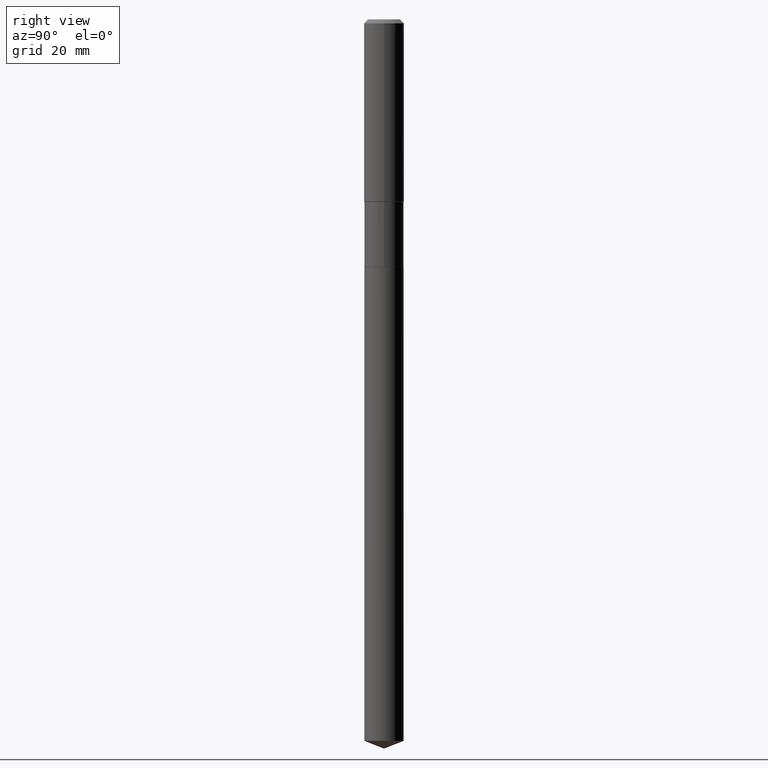
[diagram: clean part render]
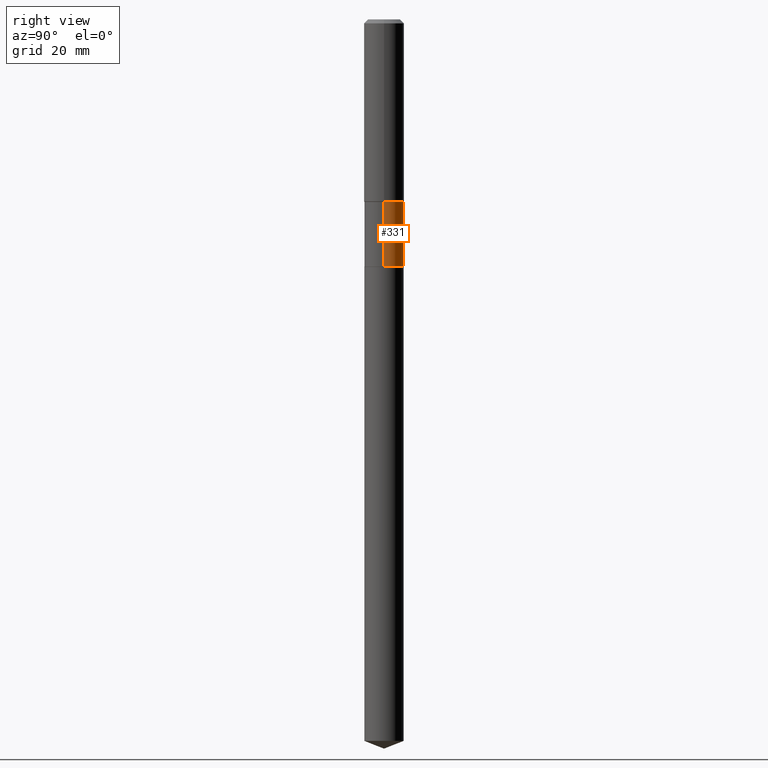
[diagram: same view with one face highlighted and labeled with its STEP entity id]
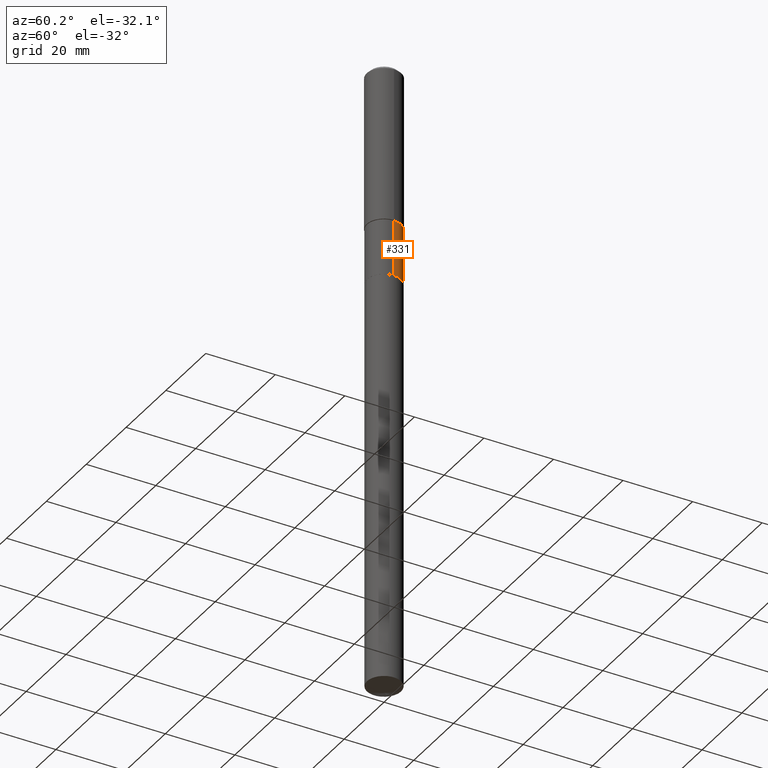
[diagram: same view with one face highlighted and labeled with its STEP entity id]
A machine part, right view. The second image highlights one B-rep face of the part: STEP entity #331.
A second angle (auxiliary view) of the same face is appended — the face is thin or edge-on in the first view.
In plain terms, the highlighted cylindrical surface (edge-blend (fillet) strip) has radius 4.8997 mm, axis along (-0, 0, 1).
Its self-contained STEP definition (entity closure, byte-faithful):
#37 = CARTESIAN_POINT ( 'NONE',  ( -0.1928999999999999326, 1.370636937281232780E-15, -9.488625789101710361E-30 ) ) ;
#41 = ORIENTED_EDGE ( 'NONE', *, *, #290, .F. ) ;
#50 = EDGE_CURVE ( 'NONE', #213, #103, #292, .T. ) ;
#52 = AXIS2_PLACEMENT_3D ( 'NONE', #391, #315, #278 ) ;
#82 = FACE_OUTER_BOUND ( 'NONE', #210, .T. ) ;
#103 = VERTEX_POINT ( 'NONE', #416 ) ;
#110 = CARTESIAN_POINT ( 'NONE',  ( 0.1928999999999999326, -1.347013500525680471E-15, 9.406145000510357801E-30 ) ) ;
#113 = CARTESIAN_POINT ( 'NONE',  ( 5.938087355178748159E-29, -8.478014986978924408E-15, -2.428199999999999914 ) ) ;
#122 = CIRCLE ( 'NONE', #233, 0.1928999999999999881 ) ;
#128 = VECTOR ( 'NONE', #405, 39.37007874015748143 ) ;
#139 = VERTEX_POINT ( 'NONE', #219 ) ;
#143 = DIRECTION ( 'NONE',  ( -2.445468806185136877E-29, 3.491481338843145188E-15, 1.000000000000000000 ) ) ;
#149 = DIRECTION ( 'NONE',  ( 1.000000000000000000, -6.982962677686264344E-15, 0.000000000000000000 ) ) ;
#209 = EDGE_CURVE ( 'NONE', #460, #139, #379, .T. ) ;
#210 = EDGE_LOOP ( 'NONE', ( #404, #490, #41, #235 ) ) ;
#213 = VERTEX_POINT ( 'NONE', #484 ) ;
#219 = CARTESIAN_POINT ( 'NONE',  ( -0.1928999999999999049, -5.996912409878630018E-15, -1.792099999999999804 ) ) ;
#227 = DIRECTION ( 'NONE',  ( 1.000000000000000000, -6.982962677686267499E-15, 4.876176775795936353E-29 ) ) ;
#228 = CYLINDRICAL_SURFACE ( 'NONE', #469, 0.1928999999999999326 ) ;
#233 = AXIS2_PLACEMENT_3D ( 'NONE', #113, #260, #149 ) ;
#235 = ORIENTED_EDGE ( 'NONE', *, *, #50, .F. ) ;
#256 = VECTOR ( 'NONE', #143, 39.37007874015748143 ) ;
#260 = DIRECTION ( 'NONE',  ( -2.445468806185136597E-29, 3.491481338843145583E-15, 1.000000000000000000 ) ) ;
#275 = EDGE_CURVE ( 'NONE', #213, #460, #122, .T. ) ;
#278 = DIRECTION ( 'NONE',  ( 1.000000000000000000, -6.982962677686267499E-15, 0.000000000000000000 ) ) ;
#290 = EDGE_CURVE ( 'NONE', #103, #139, #376, .T. ) ;
#292 = LINE ( 'NONE', #110, #256 ) ;
#315 = DIRECTION ( 'NONE',  ( -2.445468806185136597E-29, 3.491481338843145583E-15, 1.000000000000000000 ) ) ;
#331 = ADVANCED_FACE ( 'NONE', ( #82 ), #228, .T. ) ;
#376 = CIRCLE ( 'NONE', #52, 0.1928999999999999049 ) ;
#377 = CARTESIAN_POINT ( 'NONE',  ( -0.1928999999999999881, -5.996912409878630018E-15, -2.428199999999999914 ) ) ;
#379 = LINE ( 'NONE', #37, #128 ) ;
#384 = CARTESIAN_POINT ( 'NONE',  ( 0.000000000000000000, 0.000000000000000000, 0.000000000000000000 ) ) ;
#391 = CARTESIAN_POINT ( 'NONE',  ( 4.382524647564382413E-29, -6.257083707340800005E-15, -1.792099999999999804 ) ) ;
#404 = ORIENTED_EDGE ( 'NONE', *, *, #275, .T. ) ;
#405 = DIRECTION ( 'NONE',  ( -2.445468806185136877E-29, 3.491481338843145188E-15, 1.000000000000000000 ) ) ;
#407 = DIRECTION ( 'NONE',  ( -2.445468806185136597E-29, 3.491481338843145583E-15, 1.000000000000000000 ) ) ;
#416 = CARTESIAN_POINT ( 'NONE',  ( 0.1928999999999999049, -7.604097207866481068E-15, -1.792099999999999804 ) ) ;
#460 = VERTEX_POINT ( 'NONE', #377 ) ;
#469 = AXIS2_PLACEMENT_3D ( 'NONE', #384, #407, #227 ) ;
#484 = CARTESIAN_POINT ( 'NONE',  ( 0.1928999999999999881, -9.825028487504605471E-15, -2.428199999999999914 ) ) ;
#490 = ORIENTED_EDGE ( 'NONE', *, *, #209, .T. ) ;